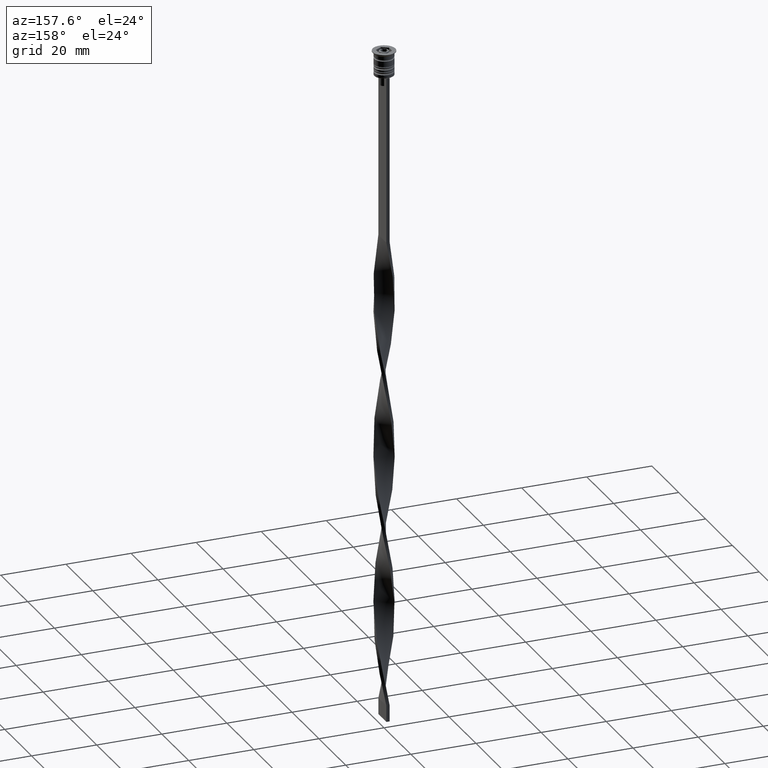
[diagram: clean part render]
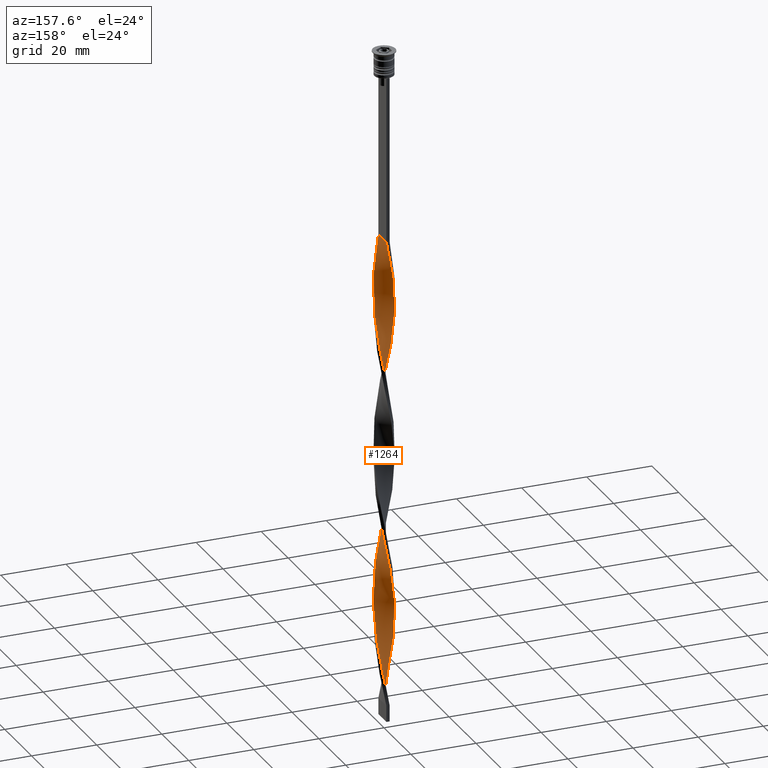
[diagram: same view with one face highlighted and labeled with its STEP entity id]
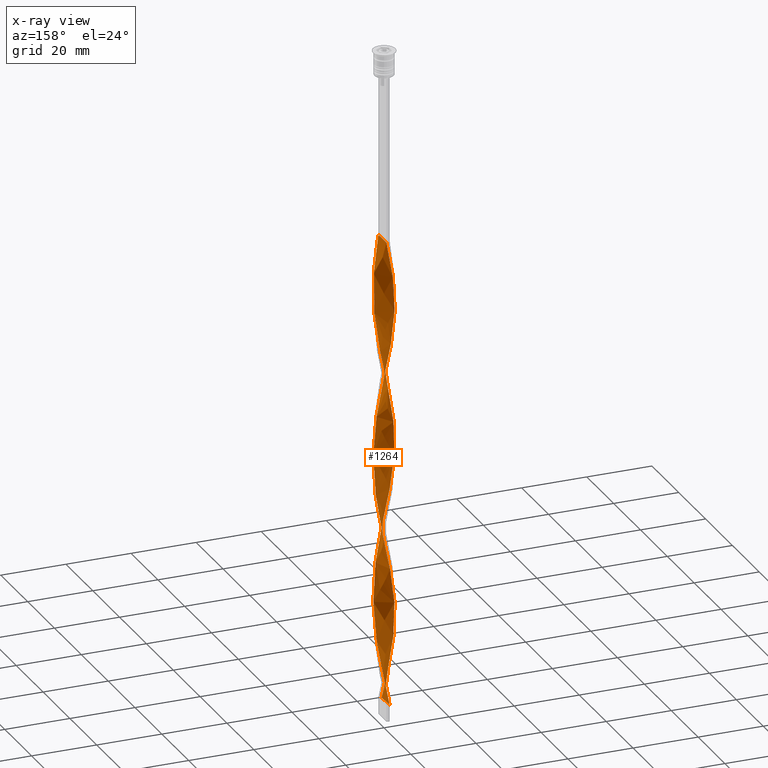
[diagram: x-ray of the same camera — body ghosted, the highlighted face saturated]
A machine part, auxiliary view. The second image highlights one B-rep face of the part: STEP entity #1264.
The next image is the same camera in x-ray: the body ghosted, the highlighted face saturated — about 0% of this face is hidden behind the body in this view.
In plain terms, the highlighted face is a freeform B-spline surface patch.
Its self-contained STEP definition (entity closure, byte-faithful):
#9 = CARTESIAN_POINT ( 'NONE',  ( 2.004405056496875837, 2.287435325750163617, -146.0294117647058556 ) ) ;
#23 = CARTESIAN_POINT ( 'NONE',  ( -1.888233802353294966, 2.400832919529793497, -167.2058823529411882 ) ) ;
#29 = CARTESIAN_POINT ( 'NONE',  ( 1.154187920767260289, 2.813867488627520785, -194.0294117647058556 ) ) ;
#39 = CARTESIAN_POINT ( 'NONE',  ( -3.053821120486486240, -0.06001802994261491719, -181.3235294117646674 ) ) ;
#52 = CARTESIAN_POINT ( 'NONE',  ( 3.053821120486486240, -0.06001802994261470209, -79.67647058823528994 ) ) ;
#59 = LINE ( 'NONE', #1224, #965 ) ;
#62 = CARTESIAN_POINT ( 'NONE',  ( -2.825922375284400712, -1.159132575987104508, -186.9705882352941444 ) ) ;
#63 = CARTESIAN_POINT ( 'NONE',  ( -0.05976200360775937165, -3.040794057959990582, -151.6764705882353041 ) ) ;
#71 = CARTESIAN_POINT ( 'NONE',  ( 2.004405056496874504, -2.287435325750164505, -66.97058823529411598 ) ) ;
#82 = CARTESIAN_POINT ( 'NONE',  ( -1.792442958670039221, -2.473170806831126445, -195.4411764705882604 ) ) ;
#101 = CARTESIAN_POINT ( 'NONE',  ( 0.05976200360776034309, 3.040794057959990582, -103.6764705882352899 ) ) ;
#116 = CARTESIAN_POINT ( 'NONE',  ( 2.869284401559882625, 1.047202283617009400, -181.3235294117646959 ) ) ;
#117 = CARTESIAN_POINT ( 'NONE',  ( 1.651582472329342188, -2.553874573485256150, -117.7941176470588118 ) ) ;
#121 = CARTESIAN_POINT ( 'NONE',  ( -1.042735103291661192, 2.857044540143419908, -109.3235294117646959 ) ) ;
#140 = CARTESIAN_POINT ( 'NONE',  ( -2.390591389550001278, 1.880178929838698831, -117.7941176470588118 ) ) ;
#153 = CARTESIAN_POINT ( 'NONE',  ( -2.092734363651090224, 2.206912522777888963, -72.61764705882352189 ) ) ;
#160 = CARTESIAN_POINT ( 'NONE',  ( -2.297234924948886814, 2.012992126025985318, -74.02941176470586981 ) ) ;
#166 = CARTESIAN_POINT ( 'NONE',  ( 2.092734363651090668, 2.206912522777888963, -92.38235294117646390 ) ) ;
#173 = CARTESIAN_POINT ( 'NONE',  ( -2.825922375284400712, -1.159132575987104508, -90.97058823529411598 ) ) ;
#179 = CARTESIAN_POINT ( 'NONE',  ( -2.825922375284401156, 1.159132575987104730, -122.0294117647058982 ) ) ;
#194 = CARTESIAN_POINT ( 'NONE',  ( 0.3415330684894309354, -3.035256292798965916, -110.7352941176470438 ) ) ;
#197 = CARTESIAN_POINT ( 'NONE',  ( -1.651582472329341744, -2.553874573485256150, -143.2058823529411882 ) ) ;
#217 = CARTESIAN_POINT ( 'NONE',  ( 2.092734363651090668, 2.206912522777888963, -188.3823529411764355 ) ) ;
#222 = ORIENTED_EDGE ( 'NONE', *, *, #997, .F. ) ;
#226 = CARTESIAN_POINT ( 'NONE',  ( -3.053821120486486684, 0.06001802994261361268, -127.6764705882352757 ) ) ;
#234 = CARTESIAN_POINT ( 'NONE',  ( 1.042735103291660970, 2.857044540143419908, -151.6764705882353041 ) ) ;
#247 = CARTESIAN_POINT ( 'NONE',  ( -0.6174888838592811346, 2.978037521306644120, -64.14705882352940591 ) ) ;
#254 = CARTESIAN_POINT ( 'NONE',  ( -1.154187920767260289, 2.813867488627520785, -162.9705882352940876 ) ) ;
#262 = CARTESIAN_POINT ( 'NONE',  ( 1.414931142305389633, -2.706916227440719691, -116.3823529411764781 ) ) ;
#271 = CARTESIAN_POINT ( 'NONE',  ( 2.216367154323710231, 2.101699844669203010, -144.6176470588235361 ) ) ;
#279 = CARTESIAN_POINT ( 'NONE',  ( 3.022308424554498441, 0.3400761486298388703, -134.7352941176470722 ) ) ;
#288 = CARTESIAN_POINT ( 'NONE',  ( -0.7779909387260889320, -2.953668176878986529, -201.0882352941176237 ) ) ;
#298 = CARTESIAN_POINT ( 'NONE',  ( 2.695369000030347184, 1.408895295497648803, -140.3823529411764639 ) ) ;
#310 = CARTESIAN_POINT ( 'NONE',  ( 2.564815624776293213, -1.658658015008195319, -71.20588235294118817 ) ) ;
#311 = CARTESIAN_POINT ( 'NONE',  ( 2.092734363651090668, 2.206912522777888963, -188.3823529411764355 ) ) ;
#321 = CARTESIAN_POINT ( 'NONE',  ( -1.042735103291662080, -2.857044540143419908, -103.6764705882352899 ) ) ;
#326 = CARTESIAN_POINT ( 'NONE',  ( 2.941068349153452832, 0.7746721665374228794, -83.91176470588234793 ) ) ;
#328 = CARTESIAN_POINT ( 'NONE',  ( 1.414931142305390299, 2.706916227440719247, -192.6176470588235077 ) ) ;
#342 = CARTESIAN_POINT ( 'NONE',  ( -2.004405056496874504, 2.287435325750164061, -114.9705882352941018 ) ) ;
#348 = CARTESIAN_POINT ( 'NONE',  ( 2.908359051953456564, -0.8896334216520838112, -75.44117647058823195 ) ) ;
#349 = CARTESIAN_POINT ( 'NONE',  ( 0.05976200360776034309, 3.040794057959990582, -199.6764705882352757 ) ) ;
#356 = B_SPLINE_CURVE_WITH_KNOTS ( 'NONE', 3,
 ( #1202, #947, #2050, #3201 ),
 .UNSPECIFIED., .F., .F.,
 ( 4, 4 ),
 ( 0.000000000000000000, 1.000000000000000000 ),
 .UNSPECIFIED. ) ;
#360 = CARTESIAN_POINT ( 'NONE',  ( 1.549961113263636614, -2.616795855119490533, -64.14705882352940591 ) ) ;
#389 = CARTESIAN_POINT ( 'NONE',  ( -2.390591389550001722, -1.880178929838698387, -191.2058823529411598 ) ) ;
#396 = CARTESIAN_POINT ( 'NONE',  ( 1.307479267857234451, -2.760420903407855509, -62.73529411764705799 ) ) ;
#407 = CARTESIAN_POINT ( 'NONE',  ( 1.651582472329342632, 2.553874573485255706, -95.20588235294117396 ) ) ;
#423 = CARTESIAN_POINT ( 'NONE',  ( -0.7779909387260893761, 2.953668176878985641, -107.9117647058823621 ) ) ;
#424 = CARTESIAN_POINT ( 'NONE',  ( -2.092734363651091112, -2.206912522777888519, -140.3823529411764639 ) ) ;
#435 = CARTESIAN_POINT ( 'NONE',  ( 1.651582472329342632, 2.553874573485255706, -95.20588235294117396 ) ) ;
#441 = CARTESIAN_POINT ( 'NONE',  ( 3.022308424554498441, -0.3400761486298388703, -174.2647058823529278 ) ) ;
#442 = CARTESIAN_POINT ( 'NONE',  ( 2.092734363651090224, -2.206912522777889407, -120.6176470588235219 ) ) ;
#445 = CARTESIAN_POINT ( 'NONE',  ( -2.628006467404950808, -1.556601299988306542, -136.1470588235294201 ) ) ;
#446 = EDGE_CURVE ( 'NONE', #2235, #1079, #1421, .T. ) ;
#455 = CARTESIAN_POINT ( 'NONE',  ( -0.7779909387260893761, 2.953668176878985641, -107.9117647058823621 ) ) ;
#459 = CARTESIAN_POINT ( 'NONE',  ( 2.990795728622512417, -0.6201342673170637809, -172.8529411764705799 ) ) ;
#464 = CARTESIAN_POINT ( 'NONE',  ( 0.7779909387260891540, -2.953668176878985641, -155.9117647058824048 ) ) ;
#468 = CARTESIAN_POINT ( 'NONE',  ( -1.651582472329342188, 2.553874573485256150, -69.79411764705881183 ) ) ;
#475 = CARTESIAN_POINT ( 'NONE',  ( -0.6174888838592811346, 2.978037521306644120, -64.14705882352940591 ) ) ;
#479 = CARTESIAN_POINT ( 'NONE',  ( 2.004405056496874504, -2.287435325750164505, -162.9705882352940876 ) ) ;
#482 = CARTESIAN_POINT ( 'NONE',  ( -2.869284401559882625, 1.047202283617009400, -79.67647058823528994 ) ) ;
#495 = CARTESIAN_POINT ( 'NONE',  ( -1.549961113263636614, -2.616795855119490533, -100.8529411764705941 ) ) ;
#499 = CARTESIAN_POINT ( 'NONE',  ( 2.216367154323710231, -2.101699844669203010, -164.3823529411764923 ) ) ;
#515 = CARTESIAN_POINT ( 'NONE',  ( -0.05976200360776023901, 3.040794057959990582, -157.3235294117646959 ) ) ;
#519 = CARTESIAN_POINT ( 'NONE',  ( 2.628006467404950364, 1.556601299988306986, -184.1470588235293917 ) ) ;
#520 = CARTESIAN_POINT ( 'NONE',  ( 2.216367154323709787, -2.101699844669203010, -164.3823529411764923 ) ) ;
#524 = CARTESIAN_POINT ( 'NONE',  ( -2.748645434482416050, -1.301901791802657860, -134.7352941176470722 ) ) ;
#534 = CARTESIAN_POINT ( 'NONE',  ( 0.2220090612739105962, 3.046331823121015248, -155.9117647058823763 ) ) ;
#540 = CARTESIAN_POINT ( 'NONE',  ( -0.05976200360776023901, 3.040794057959990582, -61.32352941176470296 ) ) ;
#550 = CARTESIAN_POINT ( 'NONE',  ( 2.825922375284400712, 1.159132575987103841, -138.9705882352941160 ) ) ;
#562 = CARTESIAN_POINT ( 'NONE',  ( 0.6174888838592815787, -2.978037521306644120, -112.1470588235294059 ) ) ;
#570 = CARTESIAN_POINT ( 'NONE',  ( -2.748645434482416050, 1.301901791802657860, -174.2647058823529278 ) ) ;
#577 = CARTESIAN_POINT ( 'NONE',  ( -2.908359051953456120, -0.8896334216520835891, -89.55882352941175384 ) ) ;
#582 = CARTESIAN_POINT ( 'NONE',  ( -2.004405056496874504, -2.287435325750164505, -194.0294117647058556 ) ) ;
#588 = CARTESIAN_POINT ( 'NONE',  ( 2.462620696176918589, -1.784796713007145375, -123.4411764705882177 ) ) ;
#609 = CARTESIAN_POINT ( 'NONE',  ( 1.042735103291660970, 2.857044540143419908, -151.6764705882353041 ) ) ;
#616 = CARTESIAN_POINT ( 'NONE',  ( 3.012852296747023484, 0.5021420494578369143, -82.49999999999998579 ) ) ;
#628 = CARTESIAN_POINT ( 'NONE',  ( 0.7779909387260893761, 2.953668176878986529, -153.0882352941176237 ) ) ;
#632 = CARTESIAN_POINT ( 'NONE',  ( 0.3415330684894316016, 3.035256292798965916, -198.2647058823529562 ) ) ;
#644 = CARTESIAN_POINT ( 'NONE',  ( -2.941068349153452388, 0.7746721665374231014, -177.0882352941176237 ) ) ;
#645 = CARTESIAN_POINT ( 'NONE',  ( -0.3415330684894319901, -3.035256292798965916, -150.2647058823528994 ) ) ;
#649 = ORIENTED_EDGE ( 'NONE', *, *, #1888, .F. ) ;
#659 = CARTESIAN_POINT ( 'NONE',  ( 1.792442958670038999, -2.473170806831126889, -65.55882352941179647 ) ) ;
#672 = CARTESIAN_POINT ( 'NONE',  ( 0.4999999999999998890, -3.000000000000000000, -58.50000000000000000 ) ) ;
#678 = CARTESIAN_POINT ( 'NONE',  ( 0.4999999999999998890, 3.000000000000000000, -58.50000000000000000 ) ) ;
#686 = CARTESIAN_POINT ( 'NONE',  ( 2.825922375284400712, -1.159132575987104063, -74.02941176470586981 ) ) ;
#687 = CARTESIAN_POINT ( 'NONE',  ( -1.414931142305390965, -2.706916227440719247, -144.6176470588235361 ) ) ;
#703 = CARTESIAN_POINT ( 'NONE',  ( 2.990795728622511973, -0.6201342673170637809, -76.85294117647060830 ) ) ;
#719 = CARTESIAN_POINT ( 'NONE',  ( 2.908359051953456564, -0.8896334216520838112, -75.44117647058823195 ) ) ;
#737 = CARTESIAN_POINT ( 'NONE',  ( 3.053821120486486240, 0.06001802994261524332, -133.3235294117646959 ) ) ;
#740 = CARTESIAN_POINT ( 'NONE',  ( 1.888233802353294966, 2.400832919529793497, -189.7941176470587834 ) ) ;
#744 = CARTESIAN_POINT ( 'NONE',  ( -1.154187920767260289, 2.813867488627520785, -66.97058823529411598 ) ) ;
#758 = CARTESIAN_POINT ( 'NONE',  ( -1.888233802353293855, -2.400832919529793941, -141.7941176470588118 ) ) ;
#764 = CARTESIAN_POINT ( 'NONE',  ( -2.748645434482416050, 1.301901791802657860, -78.26470588235292780 ) ) ;
#767 =( BOUNDED_SURFACE ( )  B_SPLINE_SURFACE ( 1, 2, ( 
 ( #1089, #2229, #540, #2817, #247, #2157, #744, #3028, #468, #1592, #2732, #160, #1312, #3613, #764, #482, #831, #3136, #1153, #2039, #3117, #871, #577, #1963, #1684, #2840, #1984, #1104, #2527, #888, #3151, #1120, #321, #3683, #1423, #3700, #3190, #1139, #562, #3451, #1995, #262, #2286, #1408, #1702, #2854, #588, #2264, #2249, #2318, #2543, #1718, #2560, #3439, #279, #3418, #2870, #1755, #298, #3167, #1442, #2581, #9, #3721, #2304, #2014, #609, #628, #1739, #2892, #3470, #2908, #1458, #907, #2597, #3398, #857, #23, #1167, #1393, #2055, #3527, #2072, #925, #644, #1772, #938, #39, #1474, #3548, #2096, #62, #2987, #2612, #389, #2636, #993, #82, #3208, #2398, #955, #2926, #1226 ),
 ( #3565, #3282, #976, #3224, #360, #659, #3246, #1794, #1210, #2360, #2950, #686, #719, #703, #2419, #2692, #3510, #2112, #1816, #1514, #1189, #2669, #2969, #2340, #3493, #1533, #407, #1495, #1550, #2377, #3267, #2655, #101, #1243, #1835, #423, #121, #1272, #2129, #1849, #342, #1033, #140, #797, #2226, #179, #3038, #1887, #1329, #1287, #1344, #1048, #2455, #3611, #2435, #445, #1009, #3305, #3354, #758, #197, #2187, #1066, #3023, #1625, #2503, #814, #2477, #1603, #464, #2174, #3324, #3337, #3055, #479, #499, #2745, #1926, #3628, #778, #1902, #3583, #3079, #3380, #2770, #2488, #3640, #2205, #2148, #519, #1646, #2791, #217, #740, #1571, #1869, #1589, #1362, #3662, #1087, #3008, #2713, #2730 ) ),
 .UNSPECIFIED., .F., .F., .F. ) 
 B_SPLINE_SURFACE_WITH_KNOTS ( ( 2, 2 ),
 ( 3, 2, 2, 2, 2, 2, 2, 2, 2, 2, 2, 2, 2, 2, 2, 2, 2, 2, 2, 2, 2, 2, 2, 2, 2, 2, 2, 2, 2, 2, 2, 2, 2, 2, 2, 2, 2, 2, 2, 2, 2, 2, 2, 2, 2, 2, 2, 2, 2, 2, 2, 3 ),
 ( 0.000000000000000000, 1.000000000000000000 ),
 ( 0.000000000000000000, 0.01470588235294117627, 0.02941176470588235253, 0.04411764705882353227, 0.05882352941176470507, 0.07352941176470588480, 0.08823529411764706454, 0.1029411764705882304, 0.1176470588235294101, 0.1323529411764705899, 0.1470588235294117696, 0.1617647058823529493, 0.1764705882352941291, 0.1911764705882352811, 0.2058823529411764608, 0.2205882352941176405, 0.2352941176470588203, 0.2500000000000000000, 0.2647058823529411797, 0.2794117647058823595, 0.2941176470588235392, 0.3088235294117647189, 0.3235294117647058987, 0.3382352941176470784, 0.3529411764705882582, 0.3676470588235294379, 0.3823529411764705621, 0.3970588235294117418, 0.4117647058823529216, 0.4264705882352941013, 0.4411764705882352811, 0.4558823529411764608, 0.4705882352941176405, 0.4852941176470588203, 0.5000000000000000000, 0.5147058823529411242, 0.5294117647058823595, 0.5441176470588234837, 0.5588235294117647189, 0.5735294117647058432, 0.5882352941176470784, 0.6029411764705882026, 0.6176470588235294379, 0.6323529411764705621, 0.6470588235294117974, 0.6617647058823529216, 0.6764705882352941568, 0.6911764705882352811, 0.7058823529411765163, 0.7205882352941176405, 0.7352941176470588758, 0.7500000000000000000 ),
 .UNSPECIFIED. ) 
 GEOMETRIC_REPRESENTATION_ITEM ( )  RATIONAL_B_SPLINE_SURFACE ( (
 ( 1.000000000000000000, 0.9957341762950344677, 1.000000000000000000, 0.9957341762950344677, 1.000000000000000000, 0.9957341762950344677, 1.000000000000000000, 0.9957341762950344677, 1.000000000000000000, 0.9957341762950344677, 1.000000000000000000, 0.9957341762950344677, 1.000000000000000000, 0.9957341762950344677, 1.000000000000000000, 0.9957341762950344677, 1.000000000000000000, 0.9957341762950344677, 1.000000000000000000, 0.9957341762950344677, 1.000000000000000000, 0.9957341762950344677, 1.000000000000000000, 0.9957341762950344677, 1.000000000000000000, 0.9957341762950344677, 1.000000000000000000, 0.9957341762950344677, 1.000000000000000000, 0.9957341762950344677, 1.000000000000000000, 0.9957341762950344677, 1.000000000000000000, 0.9957341762950344677, 1.000000000000000000, 0.9957341762950344677, 1.000000000000000000, 0.9957341762950344677, 1.000000000000000000, 0.9957341762950344677, 1.000000000000000000, 0.9957341762950344677, 1.000000000000000000, 0.9957341762950344677, 1.000000000000000000, 0.9957341762950344677, 1.000000000000000000, 0.9957341762950344677, 1.000000000000000000, 0.9957341762950344677, 1.000000000000000000, 0.9957341762950344677, 1.000000000000000000, 0.9957341762950344677, 1.000000000000000000, 0.9957341762950344677, 1.000000000000000000, 0.9957341762950344677, 1.000000000000000000, 0.9957341762950344677, 1.000000000000000000, 0.9957341762950344677, 1.000000000000000000, 0.9957341762950344677, 1.000000000000000000, 0.9957341762950344677, 1.000000000000000000, 0.9957341762950344677, 1.000000000000000000, 0.9957341762950344677, 1.000000000000000000, 0.9957341762950344677, 1.000000000000000000, 0.9957341762950344677, 1.000000000000000000, 0.9957341762950344677, 1.000000000000000000, 0.9957341762950344677, 1.000000000000000000, 0.9957341762950344677, 1.000000000000000000, 0.9957341762950344677, 1.000000000000000000, 0.9957341762950344677, 1.000000000000000000, 0.9957341762950344677, 1.000000000000000000, 0.9957341762950344677, 1.000000000000000000, 0.9957341762950344677, 1.000000000000000000, 0.9957341762950344677, 1.000000000000000000, 0.9957341762950344677, 1.000000000000000000, 0.9957341762950344677, 1.000000000000000000, 0.9957341762950344677, 1.000000000000000000, 0.9957341762950344677, 1.000000000000000000, 0.9957341762950344677, 1.000000000000000000),
 ( 1.000000000000000000, 0.9957341762950344677, 1.000000000000000000, 0.9957341762950344677, 1.000000000000000000, 0.9957341762950344677, 1.000000000000000000, 0.9957341762950344677, 1.000000000000000000, 0.9957341762950344677, 1.000000000000000000, 0.9957341762950344677, 1.000000000000000000, 0.9957341762950344677, 1.000000000000000000, 0.9957341762950344677, 1.000000000000000000, 0.9957341762950344677, 1.000000000000000000, 0.9957341762950344677, 1.000000000000000000, 0.9957341762950344677, 1.000000000000000000, 0.9957341762950344677, 1.000000000000000000, 0.9957341762950344677, 1.000000000000000000, 0.9957341762950344677, 1.000000000000000000, 0.9957341762950344677, 1.000000000000000000, 0.9957341762950344677, 1.000000000000000000, 0.9957341762950344677, 1.000000000000000000, 0.9957341762950344677, 1.000000000000000000, 0.9957341762950344677, 1.000000000000000000, 0.9957341762950344677, 1.000000000000000000, 0.9957341762950344677, 1.000000000000000000, 0.9957341762950344677, 1.000000000000000000, 0.9957341762950344677, 1.000000000000000000, 0.9957341762950344677, 1.000000000000000000, 0.9957341762950344677, 1.000000000000000000, 0.9957341762950344677, 1.000000000000000000, 0.9957341762950344677, 1.000000000000000000, 0.9957341762950344677, 1.000000000000000000, 0.9957341762950344677, 1.000000000000000000, 0.9957341762950344677, 1.000000000000000000, 0.9957341762950344677, 1.000000000000000000, 0.9957341762950344677, 1.000000000000000000, 0.9957341762950344677, 1.000000000000000000, 0.9957341762950344677, 1.000000000000000000, 0.9957341762950344677, 1.000000000000000000, 0.9957341762950344677, 1.000000000000000000, 0.9957341762950344677, 1.000000000000000000, 0.9957341762950344677, 1.000000000000000000, 0.9957341762950344677, 1.000000000000000000, 0.9957341762950344677, 1.000000000000000000, 0.9957341762950344677, 1.000000000000000000, 0.9957341762950344677, 1.000000000000000000, 0.9957341762950344677, 1.000000000000000000, 0.9957341762950344677, 1.000000000000000000, 0.9957341762950344677, 1.000000000000000000, 0.9957341762950344677, 1.000000000000000000, 0.9957341762950344677, 1.000000000000000000, 0.9957341762950344677, 1.000000000000000000, 0.9957341762950344677, 1.000000000000000000, 0.9957341762950344677, 1.000000000000000000, 0.9957341762950344677, 1.000000000000000000) ) ) 
 REPRESENTATION_ITEM ( '' )  SURFACE ( )  );
#775 = CARTESIAN_POINT ( 'NONE',  ( -2.004405056496874504, -2.287435325750164505, -98.02941176470588402 ) ) ;
#778 = CARTESIAN_POINT ( 'NONE',  ( 2.825922375284400712, -1.159132575987104063, -170.0294117647058556 ) ) ;
#794 = CARTESIAN_POINT ( 'NONE',  ( -2.869284401559882625, 1.047202283617009400, -79.67647058823528994 ) ) ;
#797 = CARTESIAN_POINT ( 'NONE',  ( -2.564815624776293213, 1.658658015008194875, -119.2058823529411455 ) ) ;
#810 = CARTESIAN_POINT ( 'NONE',  ( -2.462620696176917701, 1.784796713007145819, -171.4411764705882035 ) ) ;
#814 = CARTESIAN_POINT ( 'NONE',  ( -0.05976200360775937165, -3.040794057959990582, -151.6764705882353041 ) ) ;
#825 = CARTESIAN_POINT ( 'NONE',  ( 2.908359051953456120, 0.8896334216520844773, -137.5588235294117680 ) ) ;
#831 = CARTESIAN_POINT ( 'NONE',  ( -2.941068349153452388, 0.7746721665374231014, -81.08823529411763786 ) ) ;
#842 = CARTESIAN_POINT ( 'NONE',  ( -2.564815624776293213, -1.658658015008195319, -189.7941176470588118 ) ) ;
#857 = CARTESIAN_POINT ( 'NONE',  ( -1.651582472329342188, 2.553874573485256150, -165.7941176470588118 ) ) ;
#862 = CARTESIAN_POINT ( 'NONE',  ( -2.390591389550001722, -1.880178929838698387, -191.2058823529411598 ) ) ;
#871 = CARTESIAN_POINT ( 'NONE',  ( -2.990795728622511973, -0.6201342673170633368, -88.14705882352940591 ) ) ;
#880 = CARTESIAN_POINT ( 'NONE',  ( -1.651582472329342188, 2.553874573485256150, -165.7941176470588118 ) ) ;
#888 = CARTESIAN_POINT ( 'NONE',  ( -1.792442958670039221, -2.473170806831126445, -99.44117647058823195 ) ) ;
#907 = CARTESIAN_POINT ( 'NONE',  ( -0.8934446992291310563, 2.920818749814322324, -161.5588235294117396 ) ) ;
#914 = CARTESIAN_POINT ( 'NONE',  ( 0.7779909387260891540, -2.953668176878985641, -59.91176470588236214 ) ) ;
#925 = CARTESIAN_POINT ( 'NONE',  ( -2.869284401559882625, 1.047202283617009400, -175.6764705882353041 ) ) ;
#938 = CARTESIAN_POINT ( 'NONE',  ( -3.033336708616754418, 0.2210620097576115606, -179.9117647058823195 ) ) ;
#947 = CARTESIAN_POINT ( 'NONE',  ( -0.5000000000000000000, -1.000000000000000000, -202.4999999999999716 ) ) ;
#952 = DIRECTION ( 'NONE',  ( 0.000000000000000000, 1.000000000000000000, 0.000000000000000000 ) ) ;
#955 = CARTESIAN_POINT ( 'NONE',  ( -1.042735103291662080, -2.857044540143419908, -199.6764705882352757 ) ) ;
#957 = CARTESIAN_POINT ( 'NONE',  ( -1.154187920767261843, -2.813867488627519897, -146.0294117647058556 ) ) ;
#965 = VECTOR ( 'NONE', #952, 1000.000000000000000 ) ;
#972 = CARTESIAN_POINT ( 'NONE',  ( 2.825922375284400712, -1.159132575987103841, -170.0294117647058840 ) ) ;
#976 = CARTESIAN_POINT ( 'NONE',  ( 1.042735103291661858, -2.857044540143419908, -61.32352941176470296 ) ) ;
#984 = CARTESIAN_POINT ( 'NONE',  ( -0.2220090612739111235, 3.046331823121015692, -105.0882352941176521 ) ) ;
#989 = CARTESIAN_POINT ( 'NONE',  ( -3.022308424554498441, -0.3400761486298393144, -86.73529411764704378 ) ) ;
#993 = CARTESIAN_POINT ( 'NONE',  ( -2.004405056496874504, -2.287435325750164505, -194.0294117647058556 ) ) ;
#997 = EDGE_CURVE ( 'NONE', #2123, #1079, #356, .T. ) ;
#999 = CARTESIAN_POINT ( 'NONE',  ( 1.154187920767260289, 2.813867488627520785, -98.02941176470588402 ) ) ;
#1005 = CARTESIAN_POINT ( 'NONE',  ( 0.6174888838592815787, -2.978037521306644120, -112.1470588235294059 ) ) ;
#1009 = CARTESIAN_POINT ( 'NONE',  ( -2.462620696176917257, -1.784796713007146485, -137.5588235294117680 ) ) ;
#1033 = CARTESIAN_POINT ( 'NONE',  ( -2.216367154323709787, 2.101699844669203454, -116.3823529411764781 ) ) ;
#1044 = CARTESIAN_POINT ( 'NONE',  ( -2.390591389550001722, -1.880178929838698387, -95.20588235294117396 ) ) ;
#1048 = CARTESIAN_POINT ( 'NONE',  ( -3.012852296747023484, -0.5021420494578365812, -130.5000000000000000 ) ) ;
#1062 = CARTESIAN_POINT ( 'NONE',  ( -3.012852296747023484, 0.5021420494578373583, -82.49999999999998579 ) ) ;
#1066 = CARTESIAN_POINT ( 'NONE',  ( -1.154187920767261843, -2.813867488627519897, -146.0294117647058556 ) ) ;
#1079 = VERTEX_POINT ( 'NONE', #1466 ) ;
#1087 = CARTESIAN_POINT ( 'NONE',  ( 0.3415330684894316571, 3.035256292798965916, -198.2647058823529562 ) ) ;
#1089 = CARTESIAN_POINT ( 'NONE',  ( 0.4999999999999998890, 3.000000000000000000, -58.50000000000000000 ) ) ;
#1096 = CARTESIAN_POINT ( 'NONE',  ( 0.4999999999999998890, 3.000000000000000000, -154.4999999999999716 ) ) ;
#1104 = CARTESIAN_POINT ( 'NONE',  ( -2.216367154323710231, -2.101699844669203010, -96.61764705882353610 ) ) ;
#1108 = CARTESIAN_POINT ( 'NONE',  ( -1.792442958670038777, 2.473170806831127333, -113.5588235294117396 ) ) ;
#1112 = CARTESIAN_POINT ( 'NONE',  ( -2.695369000030346740, -1.408895295497649247, -188.3823529411764355 ) ) ;
#1120 = CARTESIAN_POINT ( 'NONE',  ( -1.307479267857235339, -2.760420903407855509, -102.2647058823529420 ) ) ;
#1127 = CARTESIAN_POINT ( 'NONE',  ( 1.549961113263636836, 2.616795855119490533, -148.8529411764705799 ) ) ;
#1139 = CARTESIAN_POINT ( 'NONE',  ( 0.3415330684894309909, -3.035256292798965916, -110.7352941176470438 ) ) ;
#1145 = CARTESIAN_POINT ( 'NONE',  ( 1.307479267857235339, 2.760420903407855064, -150.2647058823528994 ) ) ;
#1153 = CARTESIAN_POINT ( 'NONE',  ( -3.033336708616754418, 0.2210620097576115606, -83.91176470588234793 ) ) ;
#1167 = CARTESIAN_POINT ( 'NONE',  ( -2.092734363651090224, 2.206912522777888963, -168.6176470588235077 ) ) ;
#1189 = CARTESIAN_POINT ( 'NONE',  ( 2.748645434482416050, 1.301901791802658304, -86.73529411764704378 ) ) ;
#1202 = CARTESIAN_POINT ( 'NONE',  ( -0.5000000000000002220, -3.000000000000000000, -202.4999999999999716 ) ) ;
#1210 = CARTESIAN_POINT ( 'NONE',  ( 2.390591389550001278, -1.880178929838698831, -69.79411764705881183 ) ) ;
#1216 = CARTESIAN_POINT ( 'NONE',  ( 2.825922375284400712, -1.159132575987103841, -74.02941176470586981 ) ) ;
#1224 = CARTESIAN_POINT ( 'NONE',  ( 0.4999999999999998890, -3.000000000000000000, -58.50000000000000000 ) ) ;
#1226 = CARTESIAN_POINT ( 'NONE',  ( -0.5000000000000002220, -3.000000000000000000, -202.4999999999999716 ) ) ;
#1243 = CARTESIAN_POINT ( 'NONE',  ( -0.2220090612739111235, 3.046331823121015248, -105.0882352941176521 ) ) ;
#1258 = CARTESIAN_POINT ( 'NONE',  ( 0.6174888838592811346, 2.978037521306644120, -100.8529411764705941 ) ) ;
#1264 = ADVANCED_FACE ( 'NONE', ( #3362 ), #767, .T. ) ;
#1266 = CARTESIAN_POINT ( 'NONE',  ( 2.748645434482416050, 1.301901791802658304, -182.7352941176470438 ) ) ;
#1267 = CARTESIAN_POINT ( 'NONE',  ( -3.053821120486486240, -0.06001802994261491719, -85.32352941176469585 ) ) ;
#1272 = CARTESIAN_POINT ( 'NONE',  ( -1.307479267857234673, 2.760420903407855509, -110.7352941176470438 ) ) ;
#1284 = CARTESIAN_POINT ( 'NONE',  ( 2.941068349153452832, -0.7746721665374229904, -129.0882352941176521 ) ) ;
#1287 = CARTESIAN_POINT ( 'NONE',  ( -3.053821120486486684, 0.06001802994261361962, -127.6764705882352615 ) ) ;
#1288 = CARTESIAN_POINT ( 'NONE',  ( -0.6174888838592813567, -2.978037521306644120, -148.8529411764705799 ) ) ;
#1303 = CARTESIAN_POINT ( 'NONE',  ( -2.941068349153452388, 0.7746721665374231014, -81.08823529411763786 ) ) ;
#1312 = CARTESIAN_POINT ( 'NONE',  ( -2.462620696176917701, 1.784796713007145819, -75.44117647058823195 ) ) ;
#1326 = CARTESIAN_POINT ( 'NONE',  ( -2.695369000030346740, -1.408895295497649247, -92.38235294117646390 ) ) ;
#1329 = CARTESIAN_POINT ( 'NONE',  ( -3.022308424554498885, 0.3400761486298399805, -126.2647058823529420 ) ) ;
#1341 = CARTESIAN_POINT ( 'NONE',  ( 1.154187920767260511, -2.813867488627520341, -114.9705882352941018 ) ) ;
#1344 = CARTESIAN_POINT ( 'NONE',  ( -3.033336708616754418, -0.2210620097576114496, -129.0882352941176521 ) ) ;
#1362 = CARTESIAN_POINT ( 'NONE',  ( 0.8934446992291316114, 2.920818749814321880, -195.4411764705882604 ) ) ;
#1369 = CARTESIAN_POINT ( 'NONE',  ( -2.628006467404950808, -1.556601299988306542, -136.1470588235294201 ) ) ;
#1377 = CARTESIAN_POINT ( 'NONE',  ( -2.825922375284401156, 1.159132575987104730, -122.0294117647058840 ) ) ;
#1385 = CARTESIAN_POINT ( 'NONE',  ( -0.6174888838592811346, 2.978037521306644120, -160.1470588235293917 ) ) ;
#1393 = CARTESIAN_POINT ( 'NONE',  ( -2.297234924948886814, 2.012992126025985318, -170.0294117647058556 ) ) ;
#1400 = CARTESIAN_POINT ( 'NONE',  ( -3.012852296747023484, 0.5021420494578373583, -178.5000000000000000 ) ) ;
#1408 = CARTESIAN_POINT ( 'NONE',  ( 1.888233802353294966, -2.400832919529793497, -119.2058823529411455 ) ) ;
#1415 = CARTESIAN_POINT ( 'NONE',  ( -0.3415330684894309354, 3.035256292798965916, -158.7352941176470438 ) ) ;
#1421 =( BOUNDED_CURVE ( )  B_SPLINE_CURVE ( 2, ( #672, #914, #1727, #396, #2045, #3213, #71, #3196, #1760, #310, #2023, #1216, #348, #3177, #2622, #52, #2348, #616, #326, #3499, #2936, #3727, #2290, #2672, #166, #1539, #435, #3046, #999, #1561, #1258, #3555, #2136, #984, #1862, #455, #3595, #2216, #2532, #1108, #3370, #3404, #1969, #1656, #2843, #1377, #3141, #1706, #3068, #226, #1636, #3645, #3363, #3085, #524, #1369, #2970, #2927, #424, #2113, #2378, #687, #957, #1534, #1288, #645, #63, #2670, #2436, #1552, #2694, #3566, #1852, #2793, #3080, #520, #2124, #1530, #2652, #972, #3001, #459, #441, #1830, #2414, #2708, #2686, #116, #1266, #2221, #3731, #2293, #311, #3258, #2119, #328, #29, #2644, #3198, #632, #349, #2623, #3589 ),
 .UNSPECIFIED., .F., .T. ) 
 B_SPLINE_CURVE_WITH_KNOTS ( ( 3, 2, 2, 2, 2, 2, 2, 2, 2, 2, 2, 2, 2, 2, 2, 2, 2, 2, 2, 2, 2, 2, 2, 2, 2, 2, 2, 2, 2, 2, 2, 2, 2, 2, 2, 2, 2, 2, 2, 2, 2, 2, 2, 2, 2, 2, 2, 2, 2, 2, 2, 3 ),
 ( 0.000000000000000000, 0.01470588235294117453, 0.02941176470588234906, 0.04411764705882353227, 0.05882352941176469813, 0.07352941176470588480, 0.08823529411764706454, 0.1029411764705882443, 0.1176470588235293963, 0.1323529411764705899, 0.1470588235294117696, 0.1617647058823529493, 0.1764705882352941291, 0.1911764705882352811, 0.2058823529411764885, 0.2205882352941176405, 0.2352941176470587925, 0.2500000000000000000, 0.2647058823529411797, 0.2794117647058823595, 0.2941176470588235392, 0.3088235294117647189, 0.3235294117647058987, 0.3382352941176470229, 0.3529411764705882582, 0.3676470588235294379, 0.3823529411764705621, 0.3970588235294117418, 0.4117647058823529771, 0.4264705882352941013, 0.4411764705882352811, 0.4558823529411764608, 0.4705882352941175850, 0.4852941176470588203, 0.5000000000000000000, 0.5147058823529411242, 0.5294117647058823595, 0.5441176470588234837, 0.5588235294117647189, 0.5735294117647058432, 0.5882352941176470784, 0.6029411764705882026, 0.6176470588235294379, 0.6323529411764705621, 0.6470588235294117974, 0.6617647058823529216, 0.6764705882352940458, 0.6911764705882351700, 0.7058823529411765163, 0.7205882352941176405, 0.7352941176470588758, 0.7500000000000000000 ),
 .UNSPECIFIED. ) 
 CURVE ( )  GEOMETRIC_REPRESENTATION_ITEM ( )  RATIONAL_B_SPLINE_CURVE ( ( 1.000000000000000000, 0.9957341762950344677, 1.000000000000000000, 0.9957341762950344677, 1.000000000000000000, 0.9957341762950344677, 1.000000000000000000, 0.9957341762950344677, 1.000000000000000000, 0.9957341762950344677, 1.000000000000000000, 0.9957341762950344677, 1.000000000000000000, 0.9957341762950344677, 1.000000000000000000, 0.9957341762950344677, 1.000000000000000000, 0.9957341762950344677, 1.000000000000000000, 0.9957341762950344677, 1.000000000000000000, 0.9957341762950344677, 1.000000000000000000, 0.9957341762950344677, 1.000000000000000000, 0.9957341762950344677, 1.000000000000000000, 0.9957341762950344677, 1.000000000000000000, 0.9957341762950344677, 1.000000000000000000, 0.9957341762950344677, 1.000000000000000000, 0.9957341762950344677, 1.000000000000000000, 0.9957341762950344677, 1.000000000000000000, 0.9957341762950344677, 1.000000000000000000, 0.9957341762950344677, 1.000000000000000000, 0.9957341762950344677, 1.000000000000000000, 0.9957341762950344677, 1.000000000000000000, 0.9957341762950344677, 1.000000000000000000, 0.9957341762950344677, 1.000000000000000000, 0.9957341762950344677, 1.000000000000000000, 0.9957341762950344677, 1.000000000000000000, 0.9957341762950344677, 1.000000000000000000, 0.9957341762950344677, 1.000000000000000000, 0.9957341762950344677, 1.000000000000000000, 0.9957341762950344677, 1.000000000000000000, 0.9957341762950344677, 1.000000000000000000, 0.9957341762950344677, 1.000000000000000000, 0.9957341762950344677, 1.000000000000000000, 0.9957341762950344677, 1.000000000000000000, 0.9957341762950344677, 1.000000000000000000, 0.9957341762950344677, 1.000000000000000000, 0.9957341762950344677, 1.000000000000000000, 0.9957341762950344677, 1.000000000000000000, 0.9957341762950344677, 1.000000000000000000, 0.9957341762950344677, 1.000000000000000000, 0.9957341762950344677, 1.000000000000000000, 0.9957341762950344677, 1.000000000000000000, 0.9957341762950344677, 1.000000000000000000, 0.9957341762950344677, 1.000000000000000000, 0.9957341762950344677, 1.000000000000000000, 0.9957341762950344677, 1.000000000000000000, 0.9957341762950344677, 1.000000000000000000, 0.9957341762950344677, 1.000000000000000000, 0.9957341762950344677, 1.000000000000000000, 0.9957341762950344677, 1.000000000000000000, 0.9957341762950344677, 1.000000000000000000 ) ) 
 REPRESENTATION_ITEM ( '' )  );
#1423 = CARTESIAN_POINT ( 'NONE',  ( -0.5000000000000002220, -3.000000000000000000, -106.4999999999999858 ) ) ;
#1431 = CARTESIAN_POINT ( 'NONE',  ( -1.042735103291662080, -2.857044540143419908, -199.6764705882352757 ) ) ;
#1442 = CARTESIAN_POINT ( 'NONE',  ( 2.390591389550000834, 1.880178929838699053, -143.2058823529411882 ) ) ;
#1448 = CARTESIAN_POINT ( 'NONE',  ( -0.5000000000000002220, -3.000000000000000000, -202.4999999999999716 ) ) ;
#1458 = CARTESIAN_POINT ( 'NONE',  ( -0.6174888838592811346, 2.978037521306644120, -160.1470588235293917 ) ) ;
#1466 = CARTESIAN_POINT ( 'NONE',  ( -0.4999999999999995559, 3.000000000000000000, -202.4999999999999716 ) ) ;
#1474 = CARTESIAN_POINT ( 'NONE',  ( -3.022308424554498441, -0.3400761486298393144, -182.7352941176470438 ) ) ;
#1495 = CARTESIAN_POINT ( 'NONE',  ( 1.414931142305390521, 2.706916227440719247, -96.61764705882353610 ) ) ;
#1514 = CARTESIAN_POINT ( 'NONE',  ( 2.869284401559882625, 1.047202283617009400, -85.32352941176469585 ) ) ;
#1530 = CARTESIAN_POINT ( 'NONE',  ( 2.564815624776293213, -1.658658015008195319, -167.2058823529411882 ) ) ;
#1533 = CARTESIAN_POINT ( 'NONE',  ( 1.888233802353294966, 2.400832919529793497, -93.79411764705881183 ) ) ;
#1534 = CARTESIAN_POINT ( 'NONE',  ( -0.8934446992291305012, -2.920818749814322324, -147.4411764705882320 ) ) ;
#1537 = VERTEX_POINT ( 'NONE', #678 ) ;
#1539 = CARTESIAN_POINT ( 'NONE',  ( 1.888233802353294966, 2.400832919529793497, -93.79411764705882604 ) ) ;
#1550 = CARTESIAN_POINT ( 'NONE',  ( 1.154187920767260289, 2.813867488627520785, -98.02941176470588402 ) ) ;
#1552 = CARTESIAN_POINT ( 'NONE',  ( 0.7779909387260891540, -2.953668176878985641, -155.9117647058823763 ) ) ;
#1561 = CARTESIAN_POINT ( 'NONE',  ( 0.8934446992291316114, 2.920818749814321880, -99.44117647058823195 ) ) ;
#1566 = CARTESIAN_POINT ( 'NONE',  ( -1.307479267857235117, -2.760420903407855509, -102.2647058823529420 ) ) ;
#1571 = CARTESIAN_POINT ( 'NONE',  ( 1.651582472329342632, 2.553874573485255706, -191.2058823529411598 ) ) ;
#1589 = CARTESIAN_POINT ( 'NONE',  ( 1.154187920767260289, 2.813867488627520785, -194.0294117647058556 ) ) ;
#1592 = CARTESIAN_POINT ( 'NONE',  ( -1.888233802353294966, 2.400832919529793497, -71.20588235294118817 ) ) ;
#1600 = CARTESIAN_POINT ( 'NONE',  ( -2.628006467404950364, 1.556601299988307430, -76.85294117647059409 ) ) ;
#1603 = CARTESIAN_POINT ( 'NONE',  ( 0.4999999999999998890, -3.000000000000000000, -154.4999999999999716 ) ) ;
#1621 = CARTESIAN_POINT ( 'NONE',  ( -0.2220090612739103741, -3.046331823121015248, -107.9117647058823621 ) ) ;
#1625 = CARTESIAN_POINT ( 'NONE',  ( -0.6174888838592813567, -2.978037521306644120, -148.8529411764705799 ) ) ;
#1636 = CARTESIAN_POINT ( 'NONE',  ( -3.033336708616754418, -0.2210620097576114496, -129.0882352941176521 ) ) ;
#1642 = CARTESIAN_POINT ( 'NONE',  ( 2.564815624776292768, 1.658658015008195985, -141.7941176470587834 ) ) ;
#1646 = CARTESIAN_POINT ( 'NONE',  ( 2.462620696176918145, 1.784796713007145597, -185.5588235294117396 ) ) ;
#1656 = CARTESIAN_POINT ( 'NONE',  ( -2.564815624776293213, 1.658658015008194875, -119.2058823529411598 ) ) ;
#1677 = CARTESIAN_POINT ( 'NONE',  ( -1.414931142305390299, 2.706916227440719247, -164.3823529411764923 ) ) ;
#1684 = CARTESIAN_POINT ( 'NONE',  ( -2.695369000030346740, -1.408895295497649247, -92.38235294117646390 ) ) ;
#1694 = CARTESIAN_POINT ( 'NONE',  ( -2.941068349153452388, 0.7746721665374231014, -177.0882352941176237 ) ) ;
#1702 = CARTESIAN_POINT ( 'NONE',  ( 2.092734363651090224, -2.206912522777889407, -120.6176470588235219 ) ) ;
#1706 = CARTESIAN_POINT ( 'NONE',  ( -2.990795728622512417, 0.6201342673170635589, -124.8529411764705799 ) ) ;
#1709 = CARTESIAN_POINT ( 'NONE',  ( -1.549961113263636614, -2.616795855119490533, -196.8529411764705515 ) ) ;
#1718 = CARTESIAN_POINT ( 'NONE',  ( 3.012852296747023484, -0.5021420494578376914, -130.5000000000000000 ) ) ;
#1727 = CARTESIAN_POINT ( 'NONE',  ( 1.042735103291661858, -2.857044540143419908, -61.32352941176470296 ) ) ;
#1739 = CARTESIAN_POINT ( 'NONE',  ( 0.4999999999999998890, 3.000000000000000000, -154.4999999999999716 ) ) ;
#1755 = CARTESIAN_POINT ( 'NONE',  ( 2.825922375284400712, 1.159132575987104063, -138.9705882352941160 ) ) ;
#1760 = CARTESIAN_POINT ( 'NONE',  ( 2.390591389550001278, -1.880178929838698831, -69.79411764705881183 ) ) ;
#1772 = CARTESIAN_POINT ( 'NONE',  ( -3.012852296747023484, 0.5021420494578373583, -178.4999999999999716 ) ) ;
#1794 = CARTESIAN_POINT ( 'NONE',  ( 2.216367154323710231, -2.101699844669203010, -68.38235294117646390 ) ) ;
#1816 = CARTESIAN_POINT ( 'NONE',  ( 2.941068349153452832, 0.7746721665374228794, -83.91176470588234793 ) ) ;
#1830 = CARTESIAN_POINT ( 'NONE',  ( 3.053821120486486240, -0.06001802994261470209, -175.6764705882353041 ) ) ;
#1835 = CARTESIAN_POINT ( 'NONE',  ( -0.4999999999999995559, 3.000000000000000000, -106.4999999999999858 ) ) ;
#1845 = CARTESIAN_POINT ( 'NONE',  ( 1.414931142305389411, -2.706916227440719691, -116.3823529411764781 ) ) ;
#1849 = CARTESIAN_POINT ( 'NONE',  ( -1.792442958670038555, 2.473170806831126889, -113.5588235294117538 ) ) ;
#1852 = CARTESIAN_POINT ( 'NONE',  ( 1.549961113263636614, -2.616795855119490533, -160.1470588235293917 ) ) ;
#1862 = CARTESIAN_POINT ( 'NONE',  ( -0.4999999999999995559, 3.000000000000000000, -106.4999999999999858 ) ) ;
#1866 = CARTESIAN_POINT ( 'NONE',  ( -3.033336708616754418, 0.2210620097576115606, -83.91176470588234793 ) ) ;
#1869 = CARTESIAN_POINT ( 'NONE',  ( 1.414931142305390521, 2.706916227440719247, -192.6176470588235077 ) ) ;
#1884 = CARTESIAN_POINT ( 'NONE',  ( -0.05976200360776023901, 3.040794057959990582, -61.32352941176470296 ) ) ;
#1887 = CARTESIAN_POINT ( 'NONE',  ( -2.990795728622511973, 0.6201342673170635589, -124.8529411764705799 ) ) ;
#1888 = EDGE_CURVE ( 'NONE', #1537, #2123, #2794, .T. ) ;
#1899 = CARTESIAN_POINT ( 'NONE',  ( -2.462620696176917701, 1.784796713007145819, -75.44117647058823195 ) ) ;
#1902 = CARTESIAN_POINT ( 'NONE',  ( 2.908359051953456564, -0.8896334216520838112, -171.4411764705882035 ) ) ;
#1922 = CARTESIAN_POINT ( 'NONE',  ( 0.2220090612739105962, 3.046331823121015248, -59.91176470588236214 ) ) ;
#1926 = CARTESIAN_POINT ( 'NONE',  ( 2.564815624776293213, -1.658658015008195319, -167.2058823529411882 ) ) ;
#1955 = CARTESIAN_POINT ( 'NONE',  ( -2.297234924948886370, 2.012992126025985318, -170.0294117647058840 ) ) ;
#1963 = CARTESIAN_POINT ( 'NONE',  ( -2.825922375284400712, -1.159132575987104508, -90.97058823529413019 ) ) ;
#1969 = CARTESIAN_POINT ( 'NONE',  ( -2.390591389550001278, 1.880178929838698831, -117.7941176470588118 ) ) ;
#1977 = CARTESIAN_POINT ( 'NONE',  ( 2.695369000030347184, 1.408895295497648803, -140.3823529411764639 ) ) ;
#1984 = CARTESIAN_POINT ( 'NONE',  ( -2.390591389550001722, -1.880178929838698387, -95.20588235294117396 ) ) ;
#1988 = CARTESIAN_POINT ( 'NONE',  ( -2.216367154323709787, -2.101699844669203010, -192.6176470588235077 ) ) ;
#1995 = CARTESIAN_POINT ( 'NONE',  ( 1.154187920767260511, -2.813867488627520341, -114.9705882352941018 ) ) ;
#2014 = CARTESIAN_POINT ( 'NONE',  ( 1.307479267857235561, 2.760420903407855064, -150.2647058823529278 ) ) ;
#2023 = CARTESIAN_POINT ( 'NONE',  ( 2.695369000030346296, -1.408895295497649691, -72.61764705882352189 ) ) ;
#2039 = CARTESIAN_POINT ( 'NONE',  ( -3.053821120486486240, -0.06001802994261491719, -85.32352941176469585 ) ) ;
#2045 = CARTESIAN_POINT ( 'NONE',  ( 1.549961113263636614, -2.616795855119490533, -64.14705882352940591 ) ) ;
#2050 = CARTESIAN_POINT ( 'NONE',  ( -0.4999999999999997780, 1.000000000000000000, -202.4999999999999716 ) ) ;
#2055 = CARTESIAN_POINT ( 'NONE',  ( -2.462620696176917701, 1.784796713007145819, -171.4411764705882035 ) ) ;
#2072 = CARTESIAN_POINT ( 'NONE',  ( -2.748645434482416050, 1.301901791802657860, -174.2647058823529278 ) ) ;
#2096 = CARTESIAN_POINT ( 'NONE',  ( -2.908359051953456120, -0.8896334216520835891, -185.5588235294117396 ) ) ;
#2112 = CARTESIAN_POINT ( 'NONE',  ( 3.012852296747023484, 0.5021420494578369143, -82.49999999999998579 ) ) ;
#2113 = CARTESIAN_POINT ( 'NONE',  ( -1.888233802353293855, -2.400832919529793941, -141.7941176470587834 ) ) ;
#2119 = CARTESIAN_POINT ( 'NONE',  ( 1.651582472329342632, 2.553874573485255706, -191.2058823529411598 ) ) ;
#2123 = VERTEX_POINT ( 'NONE', #1448 ) ;
#2124 = CARTESIAN_POINT ( 'NONE',  ( 2.390591389550001278, -1.880178929838698831, -165.7941176470588118 ) ) ;
#2125 = CARTESIAN_POINT ( 'NONE',  ( 2.869284401559883069, -1.047202283617008511, -127.6764705882352757 ) ) ;
#2129 = CARTESIAN_POINT ( 'NONE',  ( -1.549961113263637058, 2.616795855119490533, -112.1470588235294059 ) ) ;
#2136 = CARTESIAN_POINT ( 'NONE',  ( 0.05976200360776034309, 3.040794057959990582, -103.6764705882352899 ) ) ;
#2144 = CARTESIAN_POINT ( 'NONE',  ( 3.033336708616754418, -0.2210620097576125875, -131.9117647058823479 ) ) ;
#2148 = CARTESIAN_POINT ( 'NONE',  ( 2.748645434482416050, 1.301901791802658304, -182.7352941176470438 ) ) ;
#2157 = CARTESIAN_POINT ( 'NONE',  ( -0.8934446992291310563, 2.920818749814322324, -65.55882352941179647 ) ) ;
#2174 = CARTESIAN_POINT ( 'NONE',  ( 1.042735103291661858, -2.857044540143419908, -157.3235294117646959 ) ) ;
#2187 = CARTESIAN_POINT ( 'NONE',  ( -1.414931142305390965, -2.706916227440719247, -144.6176470588235361 ) ) ;
#2205 = CARTESIAN_POINT ( 'NONE',  ( 2.869284401559882625, 1.047202283617009400, -181.3235294117646674 ) ) ;
#2216 = CARTESIAN_POINT ( 'NONE',  ( -1.307479267857234451, 2.760420903407855509, -110.7352941176470438 ) ) ;
#2221 = CARTESIAN_POINT ( 'NONE',  ( 2.628006467404950364, 1.556601299988306986, -184.1470588235293917 ) ) ;
#2226 = CARTESIAN_POINT ( 'NONE',  ( -2.695369000030346296, 1.408895295497650135, -120.6176470588235219 ) ) ;
#2229 = CARTESIAN_POINT ( 'NONE',  ( 0.2220090612739105962, 3.046331823121014803, -59.91176470588236214 ) ) ;
#2235 = VERTEX_POINT ( 'NONE', #2529 ) ;
#2249 = CARTESIAN_POINT ( 'NONE',  ( 2.748645434482415606, -1.301901791802658970, -126.2647058823529420 ) ) ;
#2257 = CARTESIAN_POINT ( 'NONE',  ( -2.628006467404950364, 1.556601299988307430, -172.8529411764705799 ) ) ;
#2264 = CARTESIAN_POINT ( 'NONE',  ( 2.628006467404950364, -1.556601299988307430, -124.8529411764705799 ) ) ;
#2277 = CARTESIAN_POINT ( 'NONE',  ( 2.004405056496875837, 2.287435325750163617, -146.0294117647058556 ) ) ;
#2286 = CARTESIAN_POINT ( 'NONE',  ( 1.651582472329342188, -2.553874573485256150, -117.7941176470588118 ) ) ;
#2290 = CARTESIAN_POINT ( 'NONE',  ( 2.462620696176918145, 1.784796713007145597, -89.55882352941175384 ) ) ;
#2293 = CARTESIAN_POINT ( 'NONE',  ( 2.297234924948886370, 2.012992126025985762, -186.9705882352941444 ) ) ;
#2294 = CARTESIAN_POINT ( 'NONE',  ( -1.792442958670039443, -2.473170806831126889, -195.4411764705882604 ) ) ;
#2304 = CARTESIAN_POINT ( 'NONE',  ( 1.549961113263636836, 2.616795855119490533, -148.8529411764705799 ) ) ;
#2318 = CARTESIAN_POINT ( 'NONE',  ( 2.869284401559883069, -1.047202283617008511, -127.6764705882352615 ) ) ;
#2340 = CARTESIAN_POINT ( 'NONE',  ( 2.297234924948886814, 2.012992126025985762, -90.97058823529413019 ) ) ;
#2348 = CARTESIAN_POINT ( 'NONE',  ( 3.033336708616754862, 0.2210620097576110610, -81.08823529411763786 ) ) ;
#2357 = ORIENTED_EDGE ( 'NONE', *, *, #446, .T. ) ;
#2360 = CARTESIAN_POINT ( 'NONE',  ( 2.564815624776293213, -1.658658015008195319, -71.20588235294118817 ) ) ;
#2377 = CARTESIAN_POINT ( 'NONE',  ( 0.8934446992291316114, 2.920818749814321880, -99.44117647058823195 ) ) ;
#2378 = CARTESIAN_POINT ( 'NONE',  ( -1.651582472329341744, -2.553874573485256150, -143.2058823529411882 ) ) ;
#2398 = CARTESIAN_POINT ( 'NONE',  ( -1.307479267857235339, -2.760420903407855509, -198.2647058823529562 ) ) ;
#2414 = CARTESIAN_POINT ( 'NONE',  ( 3.033336708616754862, 0.2210620097576110610, -177.0882352941176237 ) ) ;
#2415 = CARTESIAN_POINT ( 'NONE',  ( 1.888233802353294966, -2.400832919529793497, -119.2058823529411598 ) ) ;
#2419 = CARTESIAN_POINT ( 'NONE',  ( 3.022308424554498441, -0.3400761486298388703, -78.26470588235292780 ) ) ;
#2431 = CARTESIAN_POINT ( 'NONE',  ( -0.7779909387260889320, -2.953668176878986529, -105.0882352941176521 ) ) ;
#2435 = CARTESIAN_POINT ( 'NONE',  ( -2.748645434482416050, -1.301901791802657860, -134.7352941176470722 ) ) ;
#2436 = CARTESIAN_POINT ( 'NONE',  ( 0.4999999999999998890, -3.000000000000000000, -154.4999999999999716 ) ) ;
#2437 = ORIENTED_EDGE ( 'NONE', *, *, #2859, .F. ) ;
#2452 = CARTESIAN_POINT ( 'NONE',  ( 0.4999999999999998890, 3.000000000000000000, -58.50000000000000000 ) ) ;
#2455 = CARTESIAN_POINT ( 'NONE',  ( -2.941068349153452832, -0.7746721665374217691, -131.9117647058823479 ) ) ;
#2474 = CARTESIAN_POINT ( 'NONE',  ( -2.564815624776293213, -1.658658015008195319, -93.79411764705882604 ) ) ;
#2477 = CARTESIAN_POINT ( 'NONE',  ( 0.2220090612739107072, -3.046331823121015692, -153.0882352941176237 ) ) ;
#2486 = CARTESIAN_POINT ( 'NONE',  ( -2.748645434482416050, 1.301901791802657860, -78.26470588235292780 ) ) ;
#2488 = CARTESIAN_POINT ( 'NONE',  ( 3.012852296747023484, 0.5021420494578369143, -178.4999999999999716 ) ) ;
#2503 = CARTESIAN_POINT ( 'NONE',  ( -0.3415330684894320457, -3.035256292798965472, -150.2647058823529278 ) ) ;
#2527 = CARTESIAN_POINT ( 'NONE',  ( -2.004405056496874504, -2.287435325750164505, -98.02941176470588402 ) ) ;
#2529 = CARTESIAN_POINT ( 'NONE',  ( 0.4999999999999998890, -3.000000000000000000, -58.50000000000000000 ) ) ;
#2532 = CARTESIAN_POINT ( 'NONE',  ( -1.549961113263637058, 2.616795855119490533, -112.1470588235294059 ) ) ;
#2534 = CARTESIAN_POINT ( 'NONE',  ( -3.053821120486486240, -0.06001802994261491719, -181.3235294117646959 ) ) ;
#2543 = CARTESIAN_POINT ( 'NONE',  ( 2.941068349153452832, -0.7746721665374229904, -129.0882352941176521 ) ) ;
#2551 = CARTESIAN_POINT ( 'NONE',  ( -0.8934446992291310563, 2.920818749814322324, -161.5588235294117680 ) ) ;
#2560 = CARTESIAN_POINT ( 'NONE',  ( 3.033336708616754418, -0.2210620097576125875, -131.9117647058823479 ) ) ;
#2571 = CARTESIAN_POINT ( 'NONE',  ( -0.5000000000000002220, -3.000000000000000000, -202.4999999999999716 ) ) ;
#2581 = CARTESIAN_POINT ( 'NONE',  ( 2.216367154323710675, 2.101699844669203010, -144.6176470588235361 ) ) ;
#2597 = CARTESIAN_POINT ( 'NONE',  ( -1.154187920767260289, 2.813867488627520785, -162.9705882352940876 ) ) ;
#2612 = CARTESIAN_POINT ( 'NONE',  ( -2.564815624776293213, -1.658658015008195319, -189.7941176470587834 ) ) ;
#2622 = CARTESIAN_POINT ( 'NONE',  ( 3.022308424554498441, -0.3400761486298388703, -78.26470588235292780 ) ) ;
#2623 = CARTESIAN_POINT ( 'NONE',  ( -0.2220090612739111235, 3.046331823121015692, -201.0882352941176237 ) ) ;
#2636 = CARTESIAN_POINT ( 'NONE',  ( -2.216367154323710231, -2.101699844669203010, -192.6176470588235077 ) ) ;
#2644 = CARTESIAN_POINT ( 'NONE',  ( 0.8934446992291316114, 2.920818749814321880, -195.4411764705882604 ) ) ;
#2652 = CARTESIAN_POINT ( 'NONE',  ( 2.695369000030346296, -1.408895295497649691, -168.6176470588235077 ) ) ;
#2655 = CARTESIAN_POINT ( 'NONE',  ( 0.3415330684894316571, 3.035256292798965916, -102.2647058823529420 ) ) ;
#2669 = CARTESIAN_POINT ( 'NONE',  ( 2.628006467404950364, 1.556601299988306986, -88.14705882352940591 ) ) ;
#2670 = CARTESIAN_POINT ( 'NONE',  ( 0.2220090612739107072, -3.046331823121016136, -153.0882352941176237 ) ) ;
#2672 = CARTESIAN_POINT ( 'NONE',  ( 2.297234924948886370, 2.012992126025985762, -90.97058823529411598 ) ) ;
#2686 = CARTESIAN_POINT ( 'NONE',  ( 2.941068349153452832, 0.7746721665374228794, -179.9117647058823195 ) ) ;
#2687 = CARTESIAN_POINT ( 'NONE',  ( -1.042735103291662080, -2.857044540143419908, -103.6764705882352899 ) ) ;
#2692 = CARTESIAN_POINT ( 'NONE',  ( 3.053821120486486240, -0.06001802994261470209, -79.67647058823528994 ) ) ;
#2694 = CARTESIAN_POINT ( 'NONE',  ( 1.042735103291661858, -2.857044540143419908, -157.3235294117646959 ) ) ;
#2708 = CARTESIAN_POINT ( 'NONE',  ( 3.012852296747023484, 0.5021420494578369143, -178.5000000000000000 ) ) ;
#2709 = CARTESIAN_POINT ( 'NONE',  ( 2.462620696176918589, -1.784796713007145375, -123.4411764705882177 ) ) ;
#2713 = CARTESIAN_POINT ( 'NONE',  ( -0.2220090612739111235, 3.046331823121015248, -201.0882352941176237 ) ) ;
#2727 = CARTESIAN_POINT ( 'NONE',  ( -1.414931142305390299, 2.706916227440719247, -68.38235294117646390 ) ) ;
#2730 = CARTESIAN_POINT ( 'NONE',  ( -0.4999999999999995559, 3.000000000000000000, -202.4999999999999716 ) ) ;
#2732 = CARTESIAN_POINT ( 'NONE',  ( -2.092734363651090224, 2.206912522777888963, -72.61764705882352189 ) ) ;
#2741 = CARTESIAN_POINT ( 'NONE',  ( -2.990795728622512417, -0.6201342673170633368, -88.14705882352940591 ) ) ;
#2745 = CARTESIAN_POINT ( 'NONE',  ( 2.390591389550001278, -1.880178929838698831, -165.7941176470588118 ) ) ;
#2765 = CARTESIAN_POINT ( 'NONE',  ( -0.5000000000000002220, -3.000000000000000000, -106.4999999999999858 ) ) ;
#2770 = CARTESIAN_POINT ( 'NONE',  ( 3.033336708616754862, 0.2210620097576110610, -177.0882352941176237 ) ) ;
#2791 = CARTESIAN_POINT ( 'NONE',  ( 2.297234924948886814, 2.012992126025985762, -186.9705882352941444 ) ) ;
#2793 = CARTESIAN_POINT ( 'NONE',  ( 1.792442958670039221, -2.473170806831127333, -161.5588235294117680 ) ) ;
#2794 =( BOUNDED_CURVE ( )  B_SPLINE_CURVE ( 2, ( #2452, #1922, #1884, #3333, #475, #3034, #3604, #2727, #3320, #3624, #153, #3350, #1899, #1600, #2486, #794, #1303, #1062, #1866, #1267, #989, #2741, #3076, #173, #1326, #2474, #1044, #3002, #775, #3052, #495, #1566, #2687, #2431, #2765, #1621, #3580, #194, #1005, #3636, #1341, #1845, #117, #2415, #442, #3561, #2709, #3019, #3299, #2125, #1284, #3279, #2144, #737, #3107, #3376, #825, #550, #1977, #1642, #3692, #271, #2277, #2806, #1127, #1145, #234, #2846, #1096, #534, #515, #1415, #1385, #2551, #254, #1677, #880, #3097, #2831, #1955, #810, #2257, #570, #3675, #1694, #1400, #3143, #2534, #3407, #3428, #3126, #3708, #1112, #842, #862, #1988, #582, #2294, #1709, #2863, #1431, #288, #2571 ),
 .UNSPECIFIED., .F., .T. ) 
 B_SPLINE_CURVE_WITH_KNOTS ( ( 3, 2, 2, 2, 2, 2, 2, 2, 2, 2, 2, 2, 2, 2, 2, 2, 2, 2, 2, 2, 2, 2, 2, 2, 2, 2, 2, 2, 2, 2, 2, 2, 2, 2, 2, 2, 2, 2, 2, 2, 2, 2, 2, 2, 2, 2, 2, 2, 2, 2, 2, 3 ),
 ( 0.000000000000000000, 0.01470588235294117453, 0.02941176470588234906, 0.04411764705882353227, 0.05882352941176469813, 0.07352941176470588480, 0.08823529411764706454, 0.1029411764705882443, 0.1176470588235293963, 0.1323529411764705899, 0.1470588235294117696, 0.1617647058823529493, 0.1764705882352941291, 0.1911764705882352811, 0.2058823529411764885, 0.2205882352941176405, 0.2352941176470587925, 0.2500000000000000000, 0.2647058823529411797, 0.2794117647058823595, 0.2941176470588235392, 0.3088235294117647189, 0.3235294117647058987, 0.3382352941176470229, 0.3529411764705882582, 0.3676470588235294379, 0.3823529411764705621, 0.3970588235294117418, 0.4117647058823529771, 0.4264705882352941013, 0.4411764705882352811, 0.4558823529411764608, 0.4705882352941175850, 0.4852941176470588203, 0.5000000000000000000, 0.5147058823529411242, 0.5294117647058823595, 0.5441176470588234837, 0.5588235294117647189, 0.5735294117647058432, 0.5882352941176470784, 0.6029411764705882026, 0.6176470588235294379, 0.6323529411764705621, 0.6470588235294117974, 0.6617647058823529216, 0.6764705882352940458, 0.6911764705882351700, 0.7058823529411765163, 0.7205882352941176405, 0.7352941176470588758, 0.7500000000000000000 ),
 .UNSPECIFIED. ) 
 CURVE ( )  GEOMETRIC_REPRESENTATION_ITEM ( )  RATIONAL_B_SPLINE_CURVE ( ( 1.000000000000000000, 0.9957341762950344677, 1.000000000000000000, 0.9957341762950344677, 1.000000000000000000, 0.9957341762950344677, 1.000000000000000000, 0.9957341762950344677, 1.000000000000000000, 0.9957341762950344677, 1.000000000000000000, 0.9957341762950344677, 1.000000000000000000, 0.9957341762950344677, 1.000000000000000000, 0.9957341762950344677, 1.000000000000000000, 0.9957341762950344677, 1.000000000000000000, 0.9957341762950344677, 1.000000000000000000, 0.9957341762950344677, 1.000000000000000000, 0.9957341762950344677, 1.000000000000000000, 0.9957341762950344677, 1.000000000000000000, 0.9957341762950344677, 1.000000000000000000, 0.9957341762950344677, 1.000000000000000000, 0.9957341762950344677, 1.000000000000000000, 0.9957341762950344677, 1.000000000000000000, 0.9957341762950344677, 1.000000000000000000, 0.9957341762950344677, 1.000000000000000000, 0.9957341762950344677, 1.000000000000000000, 0.9957341762950344677, 1.000000000000000000, 0.9957341762950344677, 1.000000000000000000, 0.9957341762950344677, 1.000000000000000000, 0.9957341762950344677, 1.000000000000000000, 0.9957341762950344677, 1.000000000000000000, 0.9957341762950344677, 1.000000000000000000, 0.9957341762950344677, 1.000000000000000000, 0.9957341762950344677, 1.000000000000000000, 0.9957341762950344677, 1.000000000000000000, 0.9957341762950344677, 1.000000000000000000, 0.9957341762950344677, 1.000000000000000000, 0.9957341762950344677, 1.000000000000000000, 0.9957341762950344677, 1.000000000000000000, 0.9957341762950344677, 1.000000000000000000, 0.9957341762950344677, 1.000000000000000000, 0.9957341762950344677, 1.000000000000000000, 0.9957341762950344677, 1.000000000000000000, 0.9957341762950344677, 1.000000000000000000, 0.9957341762950344677, 1.000000000000000000, 0.9957341762950344677, 1.000000000000000000, 0.9957341762950344677, 1.000000000000000000, 0.9957341762950344677, 1.000000000000000000, 0.9957341762950344677, 1.000000000000000000, 0.9957341762950344677, 1.000000000000000000, 0.9957341762950344677, 1.000000000000000000, 0.9957341762950344677, 1.000000000000000000, 0.9957341762950344677, 1.000000000000000000, 0.9957341762950344677, 1.000000000000000000, 0.9957341762950344677, 1.000000000000000000, 0.9957341762950344677, 1.000000000000000000, 0.9957341762950344677, 1.000000000000000000 ) ) 
 REPRESENTATION_ITEM ( '' )  );
#2806 = CARTESIAN_POINT ( 'NONE',  ( 1.792442958670038777, 2.473170806831127333, -147.4411764705882320 ) ) ;
#2817 = CARTESIAN_POINT ( 'NONE',  ( -0.3415330684894309909, 3.035256292798965916, -62.73529411764705799 ) ) ;
#2831 = CARTESIAN_POINT ( 'NONE',  ( -2.092734363651090224, 2.206912522777888963, -168.6176470588235077 ) ) ;
#2840 = CARTESIAN_POINT ( 'NONE',  ( -2.564815624776293213, -1.658658015008195319, -93.79411764705881183 ) ) ;
#2843 = CARTESIAN_POINT ( 'NONE',  ( -2.695369000030346296, 1.408895295497650135, -120.6176470588235219 ) ) ;
#2846 = CARTESIAN_POINT ( 'NONE',  ( 0.7779909387260893761, 2.953668176878986085, -153.0882352941176237 ) ) ;
#2854 = CARTESIAN_POINT ( 'NONE',  ( 2.297234924948886370, -2.012992126025985762, -122.0294117647058982 ) ) ;
#2859 = EDGE_CURVE ( 'NONE', #2235, #1537, #59, .T. ) ;
#2863 = CARTESIAN_POINT ( 'NONE',  ( -1.307479267857235117, -2.760420903407855509, -198.2647058823529562 ) ) ;
#2870 = CARTESIAN_POINT ( 'NONE',  ( 2.908359051953456120, 0.8896334216520844773, -137.5588235294117680 ) ) ;
#2892 = CARTESIAN_POINT ( 'NONE',  ( 0.2220090612739105962, 3.046331823121014803, -155.9117647058824048 ) ) ;
#2908 = CARTESIAN_POINT ( 'NONE',  ( -0.3415330684894309909, 3.035256292798965916, -158.7352941176470154 ) ) ;
#2926 = CARTESIAN_POINT ( 'NONE',  ( -0.7779909387260889320, -2.953668176878986973, -201.0882352941176237 ) ) ;
#2927 = CARTESIAN_POINT ( 'NONE',  ( -2.297234924948886370, -2.012992126025985318, -138.9705882352941160 ) ) ;
#2936 = CARTESIAN_POINT ( 'NONE',  ( 2.748645434482416050, 1.301901791802658304, -86.73529411764704378 ) ) ;
#2950 = CARTESIAN_POINT ( 'NONE',  ( 2.695369000030346296, -1.408895295497649691, -72.61764705882352189 ) ) ;
#2969 = CARTESIAN_POINT ( 'NONE',  ( 2.462620696176918145, 1.784796713007145597, -89.55882352941175384 ) ) ;
#2970 = CARTESIAN_POINT ( 'NONE',  ( -2.462620696176917257, -1.784796713007146485, -137.5588235294117680 ) ) ;
#2987 = CARTESIAN_POINT ( 'NONE',  ( -2.695369000030346740, -1.408895295497649247, -188.3823529411764355 ) ) ;
#3001 = CARTESIAN_POINT ( 'NONE',  ( 2.908359051953456564, -0.8896334216520838112, -171.4411764705882035 ) ) ;
#3002 = CARTESIAN_POINT ( 'NONE',  ( -2.216367154323709787, -2.101699844669203010, -96.61764705882355031 ) ) ;
#3008 = CARTESIAN_POINT ( 'NONE',  ( 0.05976200360776034309, 3.040794057959990582, -199.6764705882352757 ) ) ;
#3019 = CARTESIAN_POINT ( 'NONE',  ( 2.628006467404950364, -1.556601299988307430, -124.8529411764705799 ) ) ;
#3023 = CARTESIAN_POINT ( 'NONE',  ( -0.8934446992291305012, -2.920818749814322324, -147.4411764705882320 ) ) ;
#3028 = CARTESIAN_POINT ( 'NONE',  ( -1.414931142305390521, 2.706916227440719247, -68.38235294117646390 ) ) ;
#3034 = CARTESIAN_POINT ( 'NONE',  ( -0.8934446992291310563, 2.920818749814322324, -65.55882352941178226 ) ) ;
#3038 = CARTESIAN_POINT ( 'NONE',  ( -2.908359051953456564, 0.8896334216520830340, -123.4411764705882177 ) ) ;
#3046 = CARTESIAN_POINT ( 'NONE',  ( 1.414931142305390299, 2.706916227440719247, -96.61764705882355031 ) ) ;
#3052 = CARTESIAN_POINT ( 'NONE',  ( -1.792442958670039443, -2.473170806831126889, -99.44117647058823195 ) ) ;
#3055 = CARTESIAN_POINT ( 'NONE',  ( 1.792442958670038999, -2.473170806831126889, -161.5588235294117396 ) ) ;
#3068 = CARTESIAN_POINT ( 'NONE',  ( -3.022308424554498885, 0.3400761486298399805, -126.2647058823529420 ) ) ;
#3076 = CARTESIAN_POINT ( 'NONE',  ( -2.908359051953456120, -0.8896334216520835891, -89.55882352941175384 ) ) ;
#3079 = CARTESIAN_POINT ( 'NONE',  ( 3.022308424554498441, -0.3400761486298388703, -174.2647058823529278 ) ) ;
#3080 = CARTESIAN_POINT ( 'NONE',  ( 2.004405056496874504, -2.287435325750164505, -162.9705882352940876 ) ) ;
#3085 = CARTESIAN_POINT ( 'NONE',  ( -2.869284401559882625, -1.047202283617009844, -133.3235294117646959 ) ) ;
#3097 = CARTESIAN_POINT ( 'NONE',  ( -1.888233802353294966, 2.400832919529793497, -167.2058823529411882 ) ) ;
#3107 = CARTESIAN_POINT ( 'NONE',  ( 3.022308424554498441, 0.3400761486298388703, -134.7352941176470722 ) ) ;
#3117 = CARTESIAN_POINT ( 'NONE',  ( -3.022308424554498441, -0.3400761486298393144, -86.73529411764704378 ) ) ;
#3126 = CARTESIAN_POINT ( 'NONE',  ( -2.908359051953456120, -0.8896334216520835891, -185.5588235294117396 ) ) ;
#3136 = CARTESIAN_POINT ( 'NONE',  ( -3.012852296747023484, 0.5021420494578373583, -82.49999999999998579 ) ) ;
#3141 = CARTESIAN_POINT ( 'NONE',  ( -2.908359051953456564, 0.8896334216520830340, -123.4411764705882177 ) ) ;
#3143 = CARTESIAN_POINT ( 'NONE',  ( -3.033336708616754418, 0.2210620097576115606, -179.9117647058823195 ) ) ;
#3151 = CARTESIAN_POINT ( 'NONE',  ( -1.549961113263636614, -2.616795855119490533, -100.8529411764705941 ) ) ;
#3167 = CARTESIAN_POINT ( 'NONE',  ( 2.564815624776292768, 1.658658015008195985, -141.7941176470588118 ) ) ;
#3177 = CARTESIAN_POINT ( 'NONE',  ( 2.990795728622512417, -0.6201342673170637809, -76.85294117647059409 ) ) ;
#3190 = CARTESIAN_POINT ( 'NONE',  ( 0.05976200360775958675, -3.040794057959990582, -109.3235294117646959 ) ) ;
#3196 = CARTESIAN_POINT ( 'NONE',  ( 2.216367154323709787, -2.101699844669203010, -68.38235294117646390 ) ) ;
#3198 = CARTESIAN_POINT ( 'NONE',  ( 0.6174888838592811346, 2.978037521306644120, -196.8529411764705515 ) ) ;
#3201 = CARTESIAN_POINT ( 'NONE',  ( -0.4999999999999995559, 3.000000000000000000, -202.4999999999999716 ) ) ;
#3208 = CARTESIAN_POINT ( 'NONE',  ( -1.549961113263636614, -2.616795855119490533, -196.8529411764705515 ) ) ;
#3213 = CARTESIAN_POINT ( 'NONE',  ( 1.792442958670039221, -2.473170806831127333, -65.55882352941178226 ) ) ;
#3224 = CARTESIAN_POINT ( 'NONE',  ( 1.307479267857234673, -2.760420903407855509, -62.73529411764705799 ) ) ;
#3246 = CARTESIAN_POINT ( 'NONE',  ( 2.004405056496874504, -2.287435325750164505, -66.97058823529411598 ) ) ;
#3258 = CARTESIAN_POINT ( 'NONE',  ( 1.888233802353294966, 2.400832919529793497, -189.7941176470588118 ) ) ;
#3267 = CARTESIAN_POINT ( 'NONE',  ( 0.6174888838592811346, 2.978037521306644120, -100.8529411764705941 ) ) ;
#3279 = CARTESIAN_POINT ( 'NONE',  ( 3.012852296747023484, -0.5021420494578376914, -130.5000000000000000 ) ) ;
#3282 = CARTESIAN_POINT ( 'NONE',  ( 0.7779909387260891540, -2.953668176878985641, -59.91176470588236214 ) ) ;
#3299 = CARTESIAN_POINT ( 'NONE',  ( 2.748645434482415606, -1.301901791802658970, -126.2647058823529420 ) ) ;
#3305 = CARTESIAN_POINT ( 'NONE',  ( -2.297234924948886814, -2.012992126025985318, -138.9705882352941160 ) ) ;
#3320 = CARTESIAN_POINT ( 'NONE',  ( -1.651582472329342188, 2.553874573485256150, -69.79411764705881183 ) ) ;
#3324 = CARTESIAN_POINT ( 'NONE',  ( 1.307479267857234673, -2.760420903407855509, -158.7352941176470154 ) ) ;
#3330 = EDGE_LOOP ( 'NONE', ( #2437, #2357, #222, #649 ) ) ;
#3333 = CARTESIAN_POINT ( 'NONE',  ( -0.3415330684894309354, 3.035256292798965916, -62.73529411764705799 ) ) ;
#3337 = CARTESIAN_POINT ( 'NONE',  ( 1.549961113263636614, -2.616795855119490533, -160.1470588235293917 ) ) ;
#3350 = CARTESIAN_POINT ( 'NONE',  ( -2.297234924948886370, 2.012992126025985318, -74.02941176470586981 ) ) ;
#3354 = CARTESIAN_POINT ( 'NONE',  ( -2.092734363651091112, -2.206912522777888519, -140.3823529411764639 ) ) ;
#3362 = FACE_OUTER_BOUND ( 'NONE', #3330, .T. ) ;
#3363 = CARTESIAN_POINT ( 'NONE',  ( -2.941068349153452832, -0.7746721665374217691, -131.9117647058823479 ) ) ;
#3370 = CARTESIAN_POINT ( 'NONE',  ( -2.004405056496874504, 2.287435325750164061, -114.9705882352941018 ) ) ;
#3376 = CARTESIAN_POINT ( 'NONE',  ( 2.990795728622511973, 0.6201342673170626707, -136.1470588235294201 ) ) ;
#3380 = CARTESIAN_POINT ( 'NONE',  ( 3.053821120486486240, -0.06001802994261470209, -175.6764705882353041 ) ) ;
#3398 = CARTESIAN_POINT ( 'NONE',  ( -1.414931142305390521, 2.706916227440719247, -164.3823529411764923 ) ) ;
#3404 = CARTESIAN_POINT ( 'NONE',  ( -2.216367154323709343, 2.101699844669203454, -116.3823529411764781 ) ) ;
#3407 = CARTESIAN_POINT ( 'NONE',  ( -3.022308424554498441, -0.3400761486298393144, -182.7352941176470438 ) ) ;
#3418 = CARTESIAN_POINT ( 'NONE',  ( 2.990795728622511529, 0.6201342673170625597, -136.1470588235294201 ) ) ;
#3428 = CARTESIAN_POINT ( 'NONE',  ( -2.990795728622512417, -0.6201342673170633368, -184.1470588235293917 ) ) ;
#3439 = CARTESIAN_POINT ( 'NONE',  ( 3.053821120486486240, 0.06001802994261524332, -133.3235294117647243 ) ) ;
#3451 = CARTESIAN_POINT ( 'NONE',  ( 0.8934446992291308343, -2.920818749814322324, -113.5588235294117538 ) ) ;
#3470 = CARTESIAN_POINT ( 'NONE',  ( -0.05976200360776023901, 3.040794057959990582, -157.3235294117646959 ) ) ;
#3493 = CARTESIAN_POINT ( 'NONE',  ( 2.092734363651090668, 2.206912522777888963, -92.38235294117646390 ) ) ;
#3499 = CARTESIAN_POINT ( 'NONE',  ( 2.869284401559882625, 1.047202283617009400, -85.32352941176469585 ) ) ;
#3510 = CARTESIAN_POINT ( 'NONE',  ( 3.033336708616754862, 0.2210620097576110610, -81.08823529411763786 ) ) ;
#3527 = CARTESIAN_POINT ( 'NONE',  ( -2.628006467404950364, 1.556601299988307430, -172.8529411764705799 ) ) ;
#3548 = CARTESIAN_POINT ( 'NONE',  ( -2.990795728622511973, -0.6201342673170633368, -184.1470588235293917 ) ) ;
#3555 = CARTESIAN_POINT ( 'NONE',  ( 0.3415330684894316016, 3.035256292798965916, -102.2647058823529420 ) ) ;
#3561 = CARTESIAN_POINT ( 'NONE',  ( 2.297234924948885926, -2.012992126025985762, -122.0294117647058840 ) ) ;
#3565 = CARTESIAN_POINT ( 'NONE',  ( 0.4999999999999998890, -3.000000000000000000, -58.50000000000000000 ) ) ;
#3566 = CARTESIAN_POINT ( 'NONE',  ( 1.307479267857234451, -2.760420903407855509, -158.7352941176470438 ) ) ;
#3580 = CARTESIAN_POINT ( 'NONE',  ( 0.05976200360775958675, -3.040794057959990582, -109.3235294117646959 ) ) ;
#3583 = CARTESIAN_POINT ( 'NONE',  ( 2.990795728622511973, -0.6201342673170637809, -172.8529411764705799 ) ) ;
#3589 = CARTESIAN_POINT ( 'NONE',  ( -0.4999999999999995559, 3.000000000000000000, -202.4999999999999716 ) ) ;
#3595 = CARTESIAN_POINT ( 'NONE',  ( -1.042735103291661192, 2.857044540143419908, -109.3235294117646959 ) ) ;
#3604 = CARTESIAN_POINT ( 'NONE',  ( -1.154187920767260289, 2.813867488627520785, -66.97058823529411598 ) ) ;
#3611 = CARTESIAN_POINT ( 'NONE',  ( -2.869284401559882625, -1.047202283617009844, -133.3235294117647243 ) ) ;
#3613 = CARTESIAN_POINT ( 'NONE',  ( -2.628006467404950364, 1.556601299988307430, -76.85294117647060830 ) ) ;
#3624 = CARTESIAN_POINT ( 'NONE',  ( -1.888233802353294966, 2.400832919529793497, -71.20588235294118817 ) ) ;
#3628 = CARTESIAN_POINT ( 'NONE',  ( 2.695369000030346296, -1.408895295497649691, -168.6176470588235077 ) ) ;
#3636 = CARTESIAN_POINT ( 'NONE',  ( 0.8934446992291308343, -2.920818749814322324, -113.5588235294117396 ) ) ;
#3640 = CARTESIAN_POINT ( 'NONE',  ( 2.941068349153452832, 0.7746721665374228794, -179.9117647058823195 ) ) ;
#3645 = CARTESIAN_POINT ( 'NONE',  ( -3.012852296747023484, -0.5021420494578365812, -130.5000000000000000 ) ) ;
#3662 = CARTESIAN_POINT ( 'NONE',  ( 0.6174888838592811346, 2.978037521306644120, -196.8529411764705515 ) ) ;
#3675 = CARTESIAN_POINT ( 'NONE',  ( -2.869284401559882625, 1.047202283617009400, -175.6764705882353041 ) ) ;
#3683 = CARTESIAN_POINT ( 'NONE',  ( -0.7779909387260889320, -2.953668176878986973, -105.0882352941176521 ) ) ;
#3692 = CARTESIAN_POINT ( 'NONE',  ( 2.390591389550000834, 1.880178929838699053, -143.2058823529411882 ) ) ;
#3700 = CARTESIAN_POINT ( 'NONE',  ( -0.2220090612739103741, -3.046331823121014803, -107.9117647058823621 ) ) ;
#3708 = CARTESIAN_POINT ( 'NONE',  ( -2.825922375284400712, -1.159132575987104508, -186.9705882352941444 ) ) ;
#3721 = CARTESIAN_POINT ( 'NONE',  ( 1.792442958670038555, 2.473170806831126889, -147.4411764705882320 ) ) ;
#3727 = CARTESIAN_POINT ( 'NONE',  ( 2.628006467404950364, 1.556601299988306986, -88.14705882352940591 ) ) ;
#3731 = CARTESIAN_POINT ( 'NONE',  ( 2.462620696176918145, 1.784796713007145597, -185.5588235294117396 ) ) ;